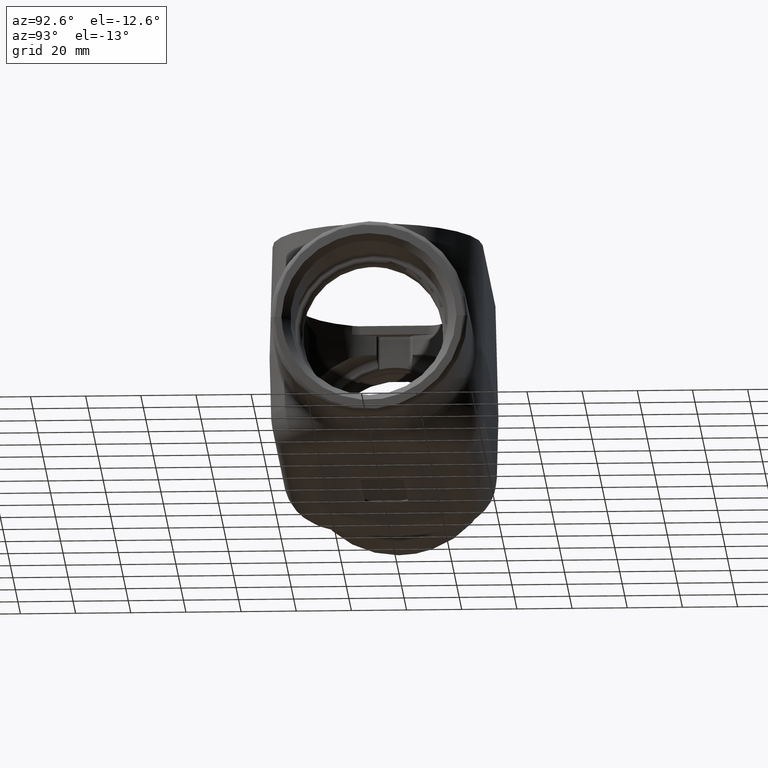
[diagram: clean part render]
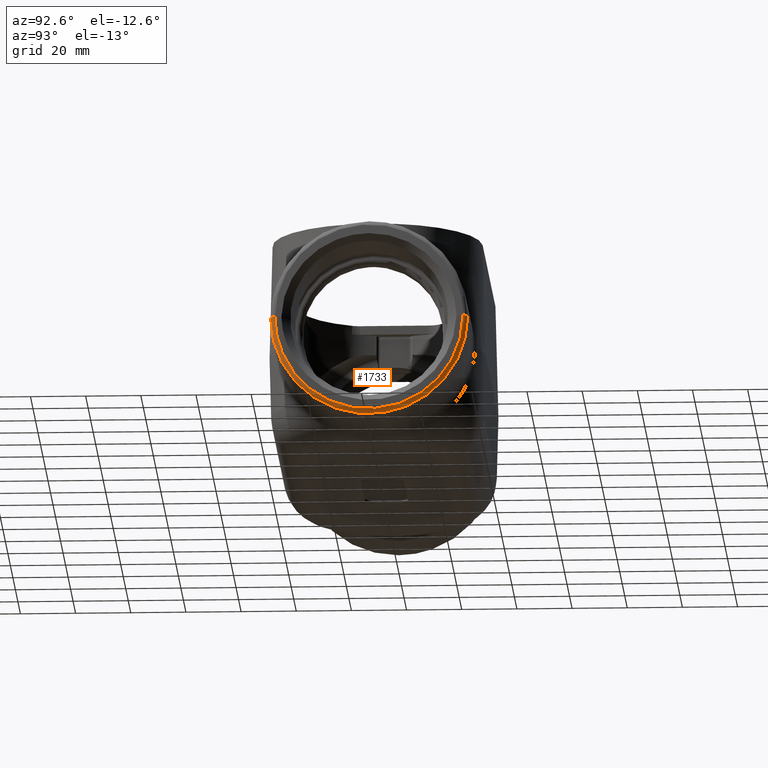
[diagram: same view with one face highlighted and labeled with its STEP entity id]
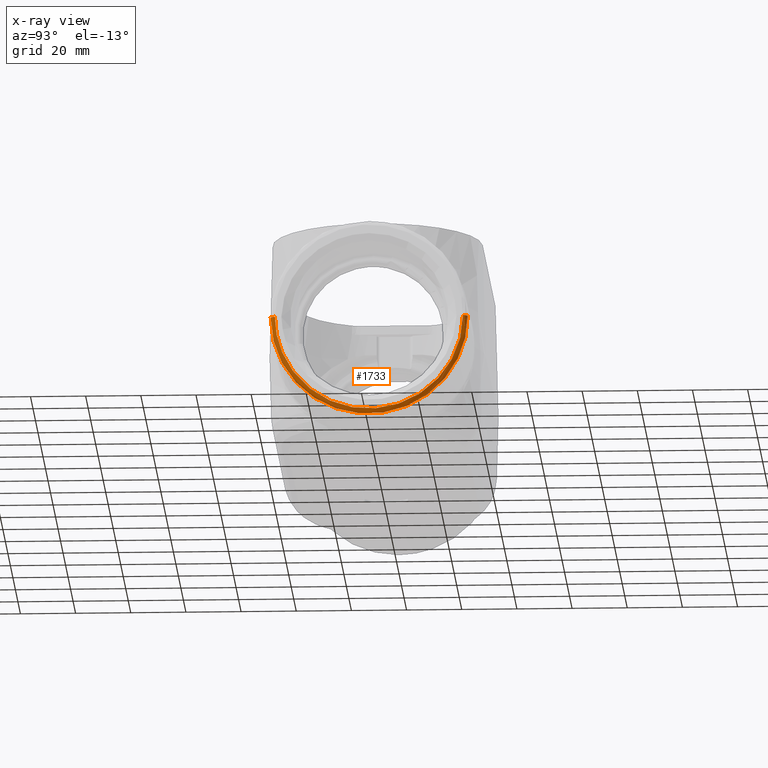
[diagram: x-ray of the same camera — body ghosted, the highlighted face saturated]
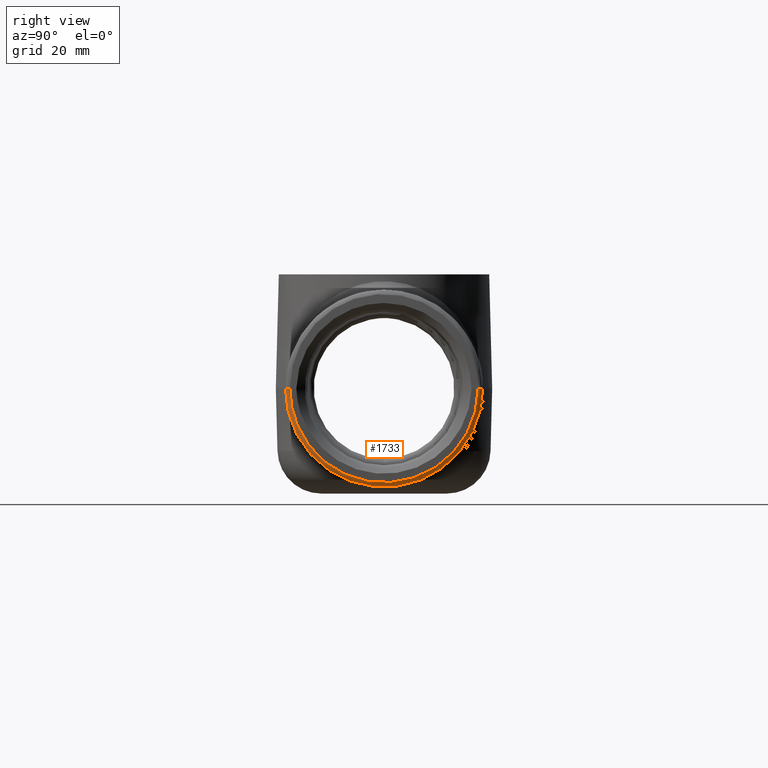
[diagram: same view with one face highlighted and labeled with its STEP entity id]
A machine part, auxiliary view. The second image highlights one B-rep face of the part: STEP entity #1733.
The next image is the same camera in x-ray: the body ghosted, the highlighted face saturated — about 0% of this face is hidden behind the body in this view.
A second angle (right view) of the same face is appended — the face is thin or edge-on in the first view.
In plain terms, the highlighted face is a freeform B-spline surface patch.
Its self-contained STEP definition (entity closure, byte-faithful):
#16=(
BOUNDED_SURFACE()
B_SPLINE_SURFACE(3,2,((#6050,#6051,#6052),(#6053,#6054,#6055),(#6056,#6057,
#6058),(#6059,#6060,#6061),(#6062,#6063,#6064),(#6065,#6066,#6067),(#6068,
#6069,#6070),(#6071,#6072,#6073),(#6074,#6075,#6076),(#6077,#6078,#6079),
(#6080,#6081,#6082),(#6083,#6084,#6085),(#6086,#6087,#6088),(#6089,#6090,
#6091),(#6092,#6093,#6094),(#6095,#6096,#6097),(#6098,#6099,#6100),(#6101,
#6102,#6103),(#6104,#6105,#6106)),.UNSPECIFIED.,.F.,.F.,.F.)
B_SPLINE_SURFACE_WITH_KNOTS((4,1,1,1,1,1,1,1,1,1,1,1,1,1,1,1,4),(3,3),(1.55070407695248,
1.74956514903214,1.94842622111181,2.14728729319147,2.34614836527113,2.5450094373508,
2.74387050943046,2.94273158151013,3.14159265358979,3.34045372566946,3.53931479774912,
3.73817586982879,3.93703694190845,4.13589801398812,4.33475908606778,4.53362015814744,
4.73248123022711),(-0.0055987090119424,1.),.UNSPECIFIED.)
GEOMETRIC_REPRESENTATION_ITEM()
RATIONAL_B_SPLINE_SURFACE(((1.00330010358381,0.705279951433952,1.),(1.00329319527574,
0.705896906883947,1.),(1.00327936939534,0.707131645139459,1.),(1.00325941646584,
0.708913567494664,1.),(1.00324102728929,0.710555836856956,1.),(1.00322491340664,
0.711994908132999,1.),(1.00321169440275,0.713175448492229,1.),(1.00320187578743,
0.71405231272106,1.),(1.00319583144906,0.714592110230992,1.),(1.00319379088208,
0.714774345722456,1.),(1.00319583144906,0.714592110230992,1.),(1.00320187578743,
0.714052312721059,1.),(1.00321169440275,0.71317544849223,1.),(1.00322491340664,
0.711994908132999,1.),(1.00324102728929,0.710555836856954,1.),(1.00325941646584,
0.708913567494667,1.),(1.00327936939534,0.707131645139456,1.),(1.00329319527574,
0.705896906883952,1.),(1.00330010358381,0.705279951433952,1.)))
REPRESENTATION_ITEM('')
SURFACE()
);
#77=ELLIPSE('',#1813,1.40643974865884,1.406);
#91=ELLIPSE('',#1892,0.0630198062978264,0.0629992751539516);
#92=ELLIPSE('',#1893,0.0630198083085281,0.0629992772649732);
#95=ELLIPSE('',#1924,1.34346037031524,1.343);
#227=FACE_OUTER_BOUND('',#331,.T.);
#331=EDGE_LOOP('',(#1562,#1563,#1564,#1565));
#692=VERTEX_POINT('',#2640);
#693=VERTEX_POINT('',#2642);
#732=VERTEX_POINT('',#4093);
#739=VERTEX_POINT('',#4761);
#919=EDGE_CURVE('',#739,#732,#77,.F.);
#1011=EDGE_CURVE('',#693,#732,#91,.T.);
#1012=EDGE_CURVE('',#739,#692,#92,.T.);
#1047=EDGE_CURVE('',#693,#692,#95,.F.);
#1562=ORIENTED_EDGE('',*,*,#1012,.T.);
#1563=ORIENTED_EDGE('',*,*,#1047,.F.);
#1564=ORIENTED_EDGE('',*,*,#1011,.T.);
#1565=ORIENTED_EDGE('',*,*,#919,.F.);
#1733=ADVANCED_FACE('',(#227),#16,.T.);
#1813=AXIS2_PLACEMENT_3D('',#4763,#2085,#2086);
#1892=AXIS2_PLACEMENT_3D('',#5230,#2269,#2270);
#1893=AXIS2_PLACEMENT_3D('',#5231,#2271,#2272);
#1924=AXIS2_PLACEMENT_3D('',#5357,#2351,#2352);
#2085=DIRECTION('center_axis',(0.999687332031634,0.,-0.0250047630557606));
#2086=DIRECTION('ref_axis',(0.0250047630557606,0.,0.999687332031633));
#2269=DIRECTION('center_axis',(3.3667751311367E-7,-3.37362560740501E-7,
-0.999999999999886));
#2270=DIRECTION('ref_axis',(0.999195935630619,0.0400934186512933,3.22880784336399E-7));
#2271=DIRECTION('center_axis',(3.36697116541863E-7,3.37382176012758E-7,
-0.999999999999886));
#2272=DIRECTION('ref_axis',(0.999197621382344,-0.0400513847920553,3.22914334621493E-7));
#2351=DIRECTION('center_axis',(-0.999657324975557,0.,0.0261769483078732));
#2352=DIRECTION('ref_axis',(0.0261769483078731,0.,0.999657324975557));
#2640=CARTESIAN_POINT('',(4.73005212254993,1.34299898745744,0.));
#2642=CARTESIAN_POINT('',(4.73005212254993,-1.34299898745744,0.));
#4093=CARTESIAN_POINT('',(4.667030526623,-1.406,2.58278009940177E-16));
#4761=CARTESIAN_POINT('',(4.667030526623,1.406,-8.60926699800589E-17));
#4763=CARTESIAN_POINT('Origin',(4.667030526623,0.,0.));
#5230=CARTESIAN_POINT('Origin',(4.66703234925073,-1.34299993424284,-2.12169337644999E-8));
#5231=CARTESIAN_POINT('Origin',(4.66703234717072,1.34299993220116,-2.12181710304265E-8));
#5357=CARTESIAN_POINT('Origin',(4.73000893809646,0.,-0.00164914774339601));
#6050=CARTESIAN_POINT('Ctrl Pts',(4.73071325810514,1.3422309005278,0.0253229788899328));
#6051=CARTESIAN_POINT('Ctrl Pts',(4.73124883082241,1.4057496162047,0.0265853600954563));
#6052=CARTESIAN_POINT('Ctrl Pts',(4.66773707714932,1.40571620949922,0.028247802589651));
#6053=CARTESIAN_POINT('Ctrl Pts',(4.72838341840002,1.34401924147977,-0.0636501397852823));
#6054=CARTESIAN_POINT('Ctrl Pts',(4.72880959504116,1.40751032668265,-0.0665154743871232));
#6055=CARTESIAN_POINT('Ctrl Pts',(4.66540638598757,1.40758867226871,-0.0649329415905909));
#6056=CARTESIAN_POINT('Ctrl Pts',(4.7237144649817,1.32984395798585,-0.241950537739617));
#6057=CARTESIAN_POINT('Ctrl Pts',(4.72392243076267,1.39248824814009,-0.253049211833219));
#6058=CARTESIAN_POINT('Ctrl Pts',(4.66073572972432,1.39274237306792,-0.251665200871789));
#6059=CARTESIAN_POINT('Ctrl Pts',(4.71695903853096,1.2561645491216,-0.49993024254387));
#6060=CARTESIAN_POINT('Ctrl Pts',(4.71684786366874,1.31508242382875,-0.523072746843453));
#6061=CARTESIAN_POINT('Ctrl Pts',(4.65397780209116,1.31557722715913,-0.521846311197822));
#6062=CARTESIAN_POINT('Ctrl Pts',(4.71071790947479,1.13297248572423,-0.738269693562258));
#6063=CARTESIAN_POINT('Ctrl Pts',(4.71031431721659,1.18590124713809,-0.772447189143292));
#6064=CARTESIAN_POINT('Ctrl Pts',(4.64773437018939,1.18655783545383,-0.771457945854308));
#6065=CARTESIAN_POINT('Ctrl Pts',(4.70523705876419,0.965123408429377,-0.947575243536102));
#6066=CARTESIAN_POINT('Ctrl Pts',(4.70457856658238,1.01005433632887,-0.991371656022285));
#6067=CARTESIAN_POINT('Ctrl Pts',(4.64225150335987,1.01076958690443,-0.99066228306306));
#6068=CARTESIAN_POINT('Ctrl Pts',(4.70073252517026,0.759233161933609,-1.11959669259288));
#6069=CARTESIAN_POINT('Ctrl Pts',(4.69986585037241,0.794478529869106,-1.17124890612646));
#6070=CARTESIAN_POINT('Ctrl Pts',(4.63774531707833,0.795141272398406,-1.17081905285065));
#6071=CARTESIAN_POINT('Ctrl Pts',(4.69738185883799,0.523417051758704,-1.2475536643388));
#6072=CARTESIAN_POINT('Ctrl Pts',(4.6963610886584,0.547664090152209,-1.30502057958321));
#6073=CARTESIAN_POINT('Ctrl Pts',(4.63439342389791,0.548172007174801,-1.30482732732693));
#6074=CARTESIAN_POINT('Ctrl Pts',(4.69531713087533,0.266969965134928,-1.32640255927146));
#6075=CARTESIAN_POINT('Ctrl Pts',(4.69420172536914,0.279321190574343,-1.38744043846663));
#6076=CARTESIAN_POINT('Ctrl Pts',(4.63232794098609,0.279596226687626,-1.38740507848829));
#6077=CARTESIAN_POINT('Ctrl Pts',(4.69461972514914,4.45873361464693E-15,
-1.35303544836174));
#6078=CARTESIAN_POINT('Ctrl Pts',(4.69347240950665,4.69411353983068E-15,
-1.41527741483761));
#6079=CARTESIAN_POINT('Ctrl Pts',(4.63163028044033,4.68020239314912E-15,
-1.41529746075585));
#6080=CARTESIAN_POINT('Ctrl Pts',(4.69531713087533,-0.266969965134936,-1.32640255927146));
#6081=CARTESIAN_POINT('Ctrl Pts',(4.69420172536914,-0.279321190574352,-1.38744043846662));
#6082=CARTESIAN_POINT('Ctrl Pts',(4.6323279409861,-0.279596226687635,-1.38740507848829));
#6083=CARTESIAN_POINT('Ctrl Pts',(4.69738185883799,-0.523417051758696,-1.2475536643388));
#6084=CARTESIAN_POINT('Ctrl Pts',(4.6963610886584,-0.547664090152201,-1.30502057958322));
#6085=CARTESIAN_POINT('Ctrl Pts',(4.63439342389791,-0.548172007174792,-1.30482732732694));
#6086=CARTESIAN_POINT('Ctrl Pts',(4.70073252517026,-0.759233161933613,-1.11959669259287));
#6087=CARTESIAN_POINT('Ctrl Pts',(4.69986585037241,-0.79447852986911,-1.17124890612646));
#6088=CARTESIAN_POINT('Ctrl Pts',(4.63774531707833,-0.795141272398411,-1.17081905285065));
#6089=CARTESIAN_POINT('Ctrl Pts',(4.70523705876419,-0.965123408429378,-0.947575243536101));
#6090=CARTESIAN_POINT('Ctrl Pts',(4.70457856658238,-1.01005433632888,-0.991371656022284));
#6091=CARTESIAN_POINT('Ctrl Pts',(4.64225150335987,-1.01076958690443,-0.990662283063059));
#6092=CARTESIAN_POINT('Ctrl Pts',(4.71071790947479,-1.13297248572423,-0.738269693562258));
#6093=CARTESIAN_POINT('Ctrl Pts',(4.71031431721659,-1.18590124713808,-0.772447189143293));
#6094=CARTESIAN_POINT('Ctrl Pts',(4.64773437018939,-1.18655783545383,-0.771457945854308));
#6095=CARTESIAN_POINT('Ctrl Pts',(4.71695903853096,-1.2561645491216,-0.499930242543866));
#6096=CARTESIAN_POINT('Ctrl Pts',(4.71684786366874,-1.31508242382875,-0.523072746843447));
#6097=CARTESIAN_POINT('Ctrl Pts',(4.65397780209116,-1.31557722715914,-0.521846311197819));
#6098=CARTESIAN_POINT('Ctrl Pts',(4.72371446498169,-1.32984395798584,-0.241950537739619));
#6099=CARTESIAN_POINT('Ctrl Pts',(4.72392243076268,-1.39248824814008,-0.253049211833229));
#6100=CARTESIAN_POINT('Ctrl Pts',(4.66073572972433,-1.39274237306792,-0.25166520087179));
#6101=CARTESIAN_POINT('Ctrl Pts',(4.72838341840002,-1.34401924147978,-0.0636501397852777));
#6102=CARTESIAN_POINT('Ctrl Pts',(4.72880959504114,-1.40751032668266,-0.0665154743871024));
#6103=CARTESIAN_POINT('Ctrl Pts',(4.66540638598755,-1.40758867226871,-0.0649329415905887));
#6104=CARTESIAN_POINT('Ctrl Pts',(4.73071325810515,-1.3422309005278,0.0253229788899319));
#6105=CARTESIAN_POINT('Ctrl Pts',(4.73124883082241,-1.4057496162047,0.0265853600954554));
#6106=CARTESIAN_POINT('Ctrl Pts',(4.66773707714932,-1.40571620949922,0.02824780258965));